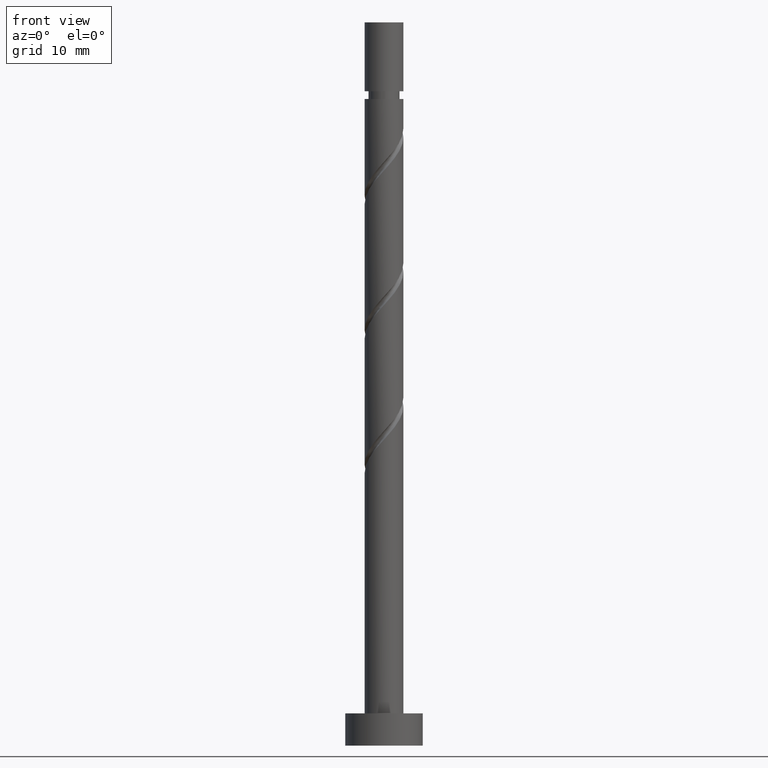
[diagram: clean part render]
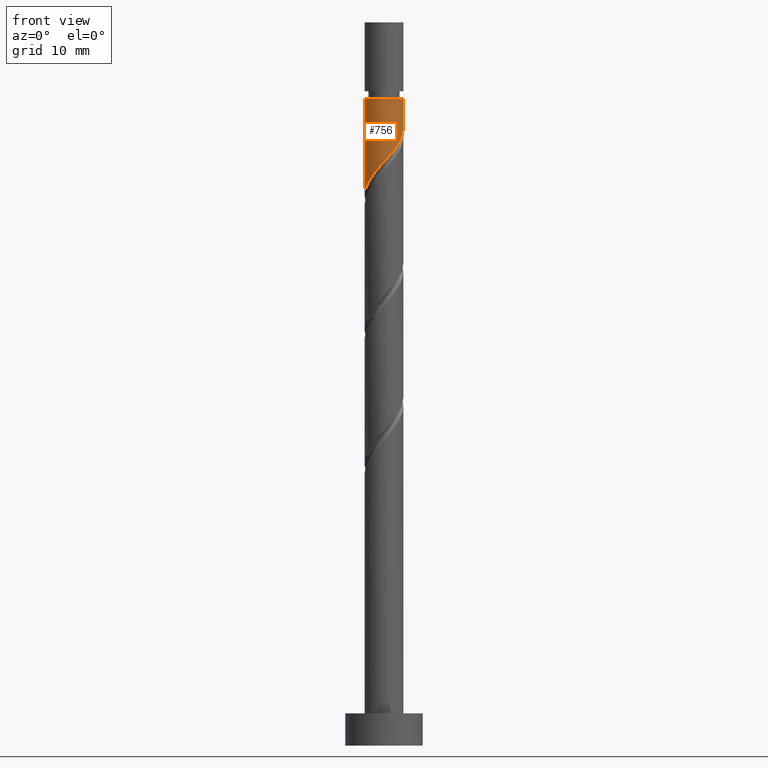
[diagram: same view with one face highlighted and labeled with its STEP entity id]
A machine part, front view. The second image highlights one B-rep face of the part: STEP entity #756.
In plain terms, the highlighted cylindrical surface (edge-blend (fillet) strip) has radius 3 mm, axis along (-0, -0, -1).
Its self-contained STEP definition (entity closure, byte-faithful):
#25 = DIRECTION ( 'NONE',  ( -0.000000000000000000, -0.000000000000000000, -1.000000000000000000 ) ) ;
#62 = CARTESIAN_POINT ( 'NONE',  ( -0.1313422077098341800, -3.034554317013645974, 90.24817249787847118 ) ) ;
#97 = LINE ( 'NONE', #1055, #280 ) ;
#118 = EDGE_CURVE ( 'NONE', #1312, #1493, #97, .T. ) ;
#141 = VERTEX_POINT ( 'NONE', #825 ) ;
#180 = CARTESIAN_POINT ( 'NONE',  ( -2.211065689225168107, -2.027606598413812744, 87.64400583121181398 ) ) ;
#182 = ORIENTED_EDGE ( 'NONE', *, *, #823, .T. ) ;
#213 = CARTESIAN_POINT ( 'NONE',  ( -2.532207025513276477, -1.677408196705099330, 87.12317249787842854 ) ) ;
#225 = EDGE_LOOP ( 'NONE', ( #1204, #182, #997, #418 ) ) ;
#268 = CARTESIAN_POINT ( 'NONE',  ( 0.000000000000000000, 0.000000000000000000, 112.0000000000000000 ) ) ;
#280 = VECTOR ( 'NONE', #1566, 1000.000000000000000 ) ;
#283 = DIRECTION ( 'NONE',  ( -1.000000000000000000, 0.000000000000000000, 0.000000000000000000 ) ) ;
#291 = CARTESIAN_POINT ( 'NONE',  ( 2.377805000122525936, -1.889924352937059071, 93.37317249787842854 ) ) ;
#307 = CARTESIAN_POINT ( 'NONE',  ( -3.000000000000000000, 3.748275695801461504E-16, 85.18380827268204314 ) ) ;
#343 = CARTESIAN_POINT ( 'NONE',  ( -3.000000000000000444, -0.1709212123392928884, 85.37331936188932957 ) ) ;
#394 = CARTESIAN_POINT ( 'NONE',  ( 2.611625341554440372, -1.476283534877584014, 93.89400583121179977 ) ) ;
#416 = CARTESIAN_POINT ( 'NONE',  ( 0.3407363920471074836, -2.980586974261064004, 90.76900583121182819 ) ) ;
#418 = ORIENTED_EDGE ( 'NONE', *, *, #879, .F. ) ;
#424 = CARTESIAN_POINT ( 'NONE',  ( -0.5969924622639709577, -2.940000000000001279, 89.72733916454515679 ) ) ;
#465 = CARTESIAN_POINT ( 'NONE',  ( 3.000000000000000444, 3.673940397442060361E-16, 100.1440058312117998 ) ) ;
#467 = CARTESIAN_POINT ( 'NONE',  ( -2.926619631508479813, -0.8128149918040490363, 86.08150583121179977 ) ) ;
#468 = AXIS2_PLACEMENT_3D ( 'NONE', #1502, #884, #1259 ) ;
#496 = LINE ( 'NONE', #1112, #1002 ) ;
#544 = CARTESIAN_POINT ( 'NONE',  ( 0.8128149918040487032, -2.926619631508479813, 91.28983916454508574 ) ) ;
#551 = FACE_OUTER_BOUND ( 'NONE', #225, .T. ) ;
#639 = EDGE_CURVE ( 'NONE', #1007, #141, #496, .T. ) ;
#660 = CARTESIAN_POINT ( 'NONE',  ( 2.027606598413812744, -2.211065689225168107, 92.85233916454514258 ) ) ;
#686 = CARTESIAN_POINT ( 'NONE',  ( 2.845445682986353031, -1.062642716818107624, 94.41483916454512837 ) ) ;
#709 = CARTESIAN_POINT ( 'NONE',  ( -3.000000000000000000, 3.748275695801461997E-16, 85.18380827268204314 ) ) ;
#747 =( BOUNDED_CURVE ( )  B_SPLINE_CURVE ( 2, ( #917, #790, #1410, #686, #394, #291, #660, #1154, #1147, #544, #416, #62, #424, #1403, #789, #882, #180, #213, #916, #467, #1444, #343, #307 ),
 .UNSPECIFIED., .F., .T. ) 
 B_SPLINE_CURVE_WITH_KNOTS ( ( 3, 2, 2, 2, 2, 2, 2, 2, 2, 2, 2, 3 ),
 ( 0.3045322023138551937, 0.3125000000000000000, 0.3250000000000000111, 0.3375000000000000222, 0.3499999999999999778, 0.3624999999999999889, 0.3750000000000000000, 0.3875000000000000111, 0.4000000000000000222, 0.4124999999999999778, 0.4249999999999999889, 0.4295322023138553602 ),
 .UNSPECIFIED. ) 
 CURVE ( )  GEOMETRIC_REPRESENTATION_ITEM ( )  RATIONAL_B_SPLINE_CURVE ( ( 0.9039174447099322940, 0.9019565955404615920, 0.9090909090909098378, 0.8978984914501261239, 0.9090909090909098378, 0.8978984914501261239, 0.9090909090909098378, 0.8978984914501261239, 0.9090909090909098378, 0.8978984914501261239, 0.9090909090909098378, 0.8978984914501261239, 0.9090909090909098378, 0.8978984914501261239, 0.9090909090909098378, 0.8978984914501261239, 0.9090909090909098378, 0.8978984914501261239, 0.9090909090909098378, 0.8978984914501261239, 0.9090909090909098378, 0.9050328050005741476, 0.9039174447099321830 ) ) 
 REPRESENTATION_ITEM ( '' )  );
#756 = ADVANCED_FACE ( 'NONE', ( #551 ), #762, .T. ) ;
#762 = CYLINDRICAL_SURFACE ( 'NONE', #1107, 3.000000000000000444 ) ;
#774 = DIRECTION ( 'NONE',  ( -0.000000000000000000, -0.000000000000000000, -1.000000000000000000 ) ) ;
#789 = CARTESIAN_POINT ( 'NONE',  ( -1.476283534877584014, -2.611625341554440372, 88.68567249787847118 ) ) ;
#790 = CARTESIAN_POINT ( 'NONE',  ( 3.000000000000000000, -0.3015113445777635737, 95.26617036394085858 ) ) ;
#823 = EDGE_CURVE ( 'NONE', #1007, #1312, #1409, .T. ) ;
#825 = CARTESIAN_POINT ( 'NONE',  ( 3.000000000000000000, -7.946344475099100104E-16, 95.60047493934871454 ) ) ;
#879 = EDGE_CURVE ( 'NONE', #141, #1493, #747, .T. ) ;
#882 = CARTESIAN_POINT ( 'NONE',  ( -1.889924352937059071, -2.377805000122525936, 88.16483916454511416 ) ) ;
#884 = DIRECTION ( 'NONE',  ( -0.000000000000000000, -0.000000000000000000, -1.000000000000000000 ) ) ;
#916 = CARTESIAN_POINT ( 'NONE',  ( -2.729413328510879477, -1.245111594254574738, 86.60233916454511416 ) ) ;
#917 = CARTESIAN_POINT ( 'NONE',  ( 3.000000000000000000, -7.946344475099100104E-16, 95.60047493934870033 ) ) ;
#985 = CARTESIAN_POINT ( 'NONE',  ( -3.000000000000000444, 0.000000000000000000, 100.1440058312117998 ) ) ;
#997 = ORIENTED_EDGE ( 'NONE', *, *, #118, .T. ) ;
#1002 = VECTOR ( 'NONE', #25, 1000.000000000000000 ) ;
#1007 = VERTEX_POINT ( 'NONE', #465 ) ;
#1055 = CARTESIAN_POINT ( 'NONE',  ( -3.000000000000000444, 0.000000000000000000, 112.0000000000000000 ) ) ;
#1107 = AXIS2_PLACEMENT_3D ( 'NONE', #268, #774, #283 ) ;
#1112 = CARTESIAN_POINT ( 'NONE',  ( 3.000000000000000444, 3.673940397442060361E-16, 112.0000000000000000 ) ) ;
#1147 = CARTESIAN_POINT ( 'NONE',  ( 1.245111594254574738, -2.729413328510879477, 91.81067249787847118 ) ) ;
#1154 = CARTESIAN_POINT ( 'NONE',  ( 1.677408196705099330, -2.532207025513276477, 92.33150583121178556 ) ) ;
#1204 = ORIENTED_EDGE ( 'NONE', *, *, #639, .F. ) ;
#1259 = DIRECTION ( 'NONE',  ( -1.000000000000000000, 0.000000000000000000, 0.000000000000000000 ) ) ;
#1312 = VERTEX_POINT ( 'NONE', #985 ) ;
#1403 = CARTESIAN_POINT ( 'NONE',  ( -1.062642716818107180, -2.845445682986353031, 89.20650583121174293 ) ) ;
#1409 = CIRCLE ( 'NONE', #468, 3.000000000000000444 ) ;
#1410 = CARTESIAN_POINT ( 'NONE',  ( 2.940000000000001279, -0.5969924622639711798, 94.93567249787847118 ) ) ;
#1444 = CARTESIAN_POINT ( 'NONE',  ( -2.980586974261064004, -0.3407363920471077057, 85.56067249787847118 ) ) ;
#1493 = VERTEX_POINT ( 'NONE', #709 ) ;
#1502 = CARTESIAN_POINT ( 'NONE',  ( 0.000000000000000000, 0.000000000000000000, 100.1440058312117998 ) ) ;
#1566 = DIRECTION ( 'NONE',  ( -0.000000000000000000, -0.000000000000000000, -1.000000000000000000 ) ) ;